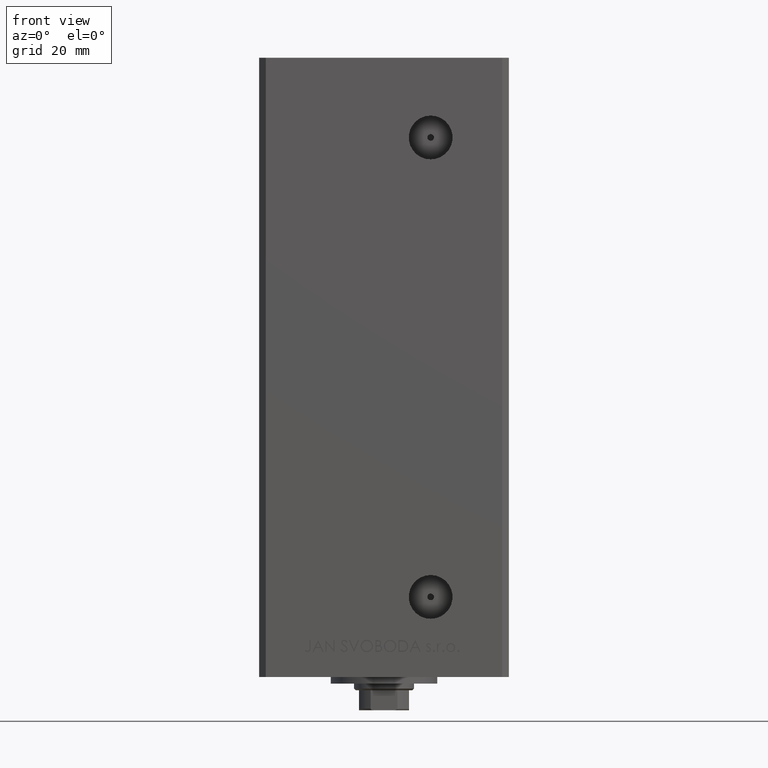
[diagram: clean part render]
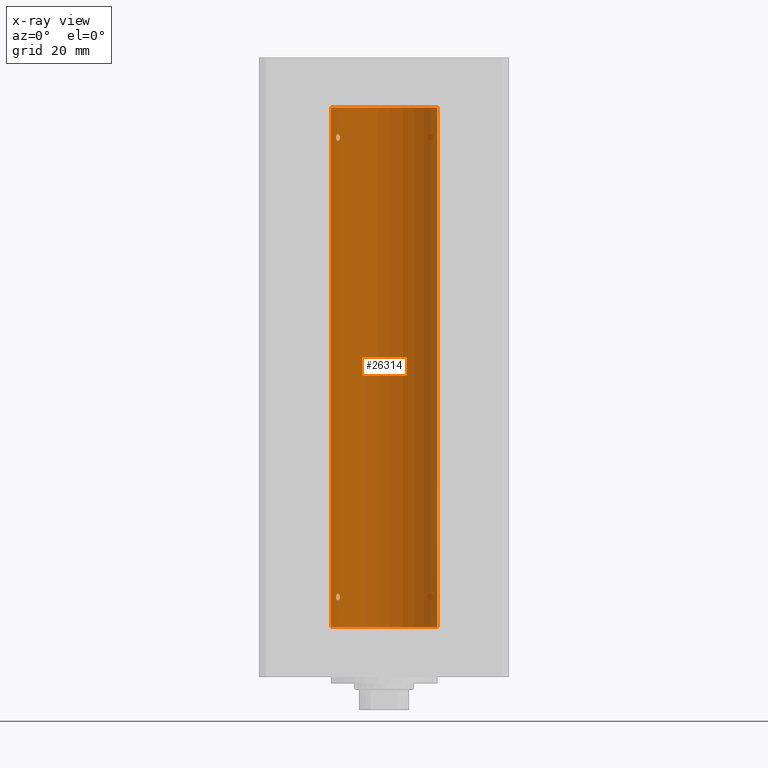
[diagram: x-ray — body ghosted, one internal face saturated and labeled with its STEP entity id]
A machine part, front view, then the same camera in x-ray: the body is ghosted and one INTERNAL B-rep face — a face not visible from any outside direction — is saturated and labeled: STEP entity #26314.
In plain terms, the highlighted cylindrical surface (partial cylindrical patch) has radius 16 mm, axis along (-0, -0, -1).
Its self-contained STEP definition (entity closure, byte-faithful):
#20 = CARTESIAN_POINT ( 'NONE',  ( -13.23400746336173484, 8.992294519018072307, 8.857814559023026391 ) ) ;
#146 = LINE ( 'NONE', #12428, #32082 ) ;
#596 = CARTESIAN_POINT ( 'NONE',  ( -13.91892506969882426, 7.891973478508846895, 148.0015521226324324 ) ) ;
#1583 = CARTESIAN_POINT ( 'NONE',  ( -14.38749456993816800, 6.999999999999984013, 9.000000000000007105 ) ) ;
#2012 = FACE_BOUND ( 'NONE', #5153, .T. ) ;
#2060 = CARTESIAN_POINT ( 'NONE',  ( -13.49759407097375075, 8.592283911330225621, 146.1840991521276862 ) ) ;
#2339 = EDGE_CURVE ( 'NONE', #33959, #44955, #7535, .T. ) ;
#3729 = ORIENTED_EDGE ( 'NONE', *, *, #42667, .F. ) ;
#4039 = CARTESIAN_POINT ( 'NONE',  ( -14.17528142432534288, 7.421143801852442934, 8.173943073538671555 ) ) ;
#4043 = ORIENTED_EDGE ( 'NONE', *, *, #14761, .F. ) ;
#4368 = CARTESIAN_POINT ( 'NONE',  ( -13.32457971225032267, 8.857769707964649797, 147.5319996627465571 ) ) ;
#4717 = ORIENTED_EDGE ( 'NONE', *, *, #28015, .T. ) ;
#5153 = EDGE_LOOP ( 'NONE', ( #29579, #26848 ) ) ;
#5825 = CARTESIAN_POINT ( 'NONE',  ( -13.91838063522421187, 7.892966471903947401, 145.9981483133087181 ) ) ;
#5844 = CARTESIAN_POINT ( 'NONE',  ( -14.31650799088419213, 7.144337649771898668, 9.535522627373698157 ) ) ;
#6134 = CIRCLE ( 'NONE', #43870, 16.00000000000000000 ) ;
#6352 = CARTESIAN_POINT ( 'NONE',  ( -16.00000000000000000, 0.000000000000000000, 156.0000000000000000 ) ) ;
#7058 = VERTEX_POINT ( 'NONE', #19110 ) ;
#7299 = CARTESIAN_POINT ( 'NONE',  ( -13.77582987033441952, 8.139210687602698613, 8.002110545841825129 ) ) ;
#7535 = B_SPLINE_CURVE_WITH_KNOTS ( 'NONE', 3,
 ( #46235, #42216, #34189, #34436, #38458, #4039, #23643, #42463, #49506, #7299, #15826, #19866, #31179, #30924, #35193, #26659, #11805, #20, #38961, #7543 ),
 .UNSPECIFIED., .F., .F.,
 ( 4, 2, 2, 2, 2, 2, 2, 2, 2, 4 ),
 ( 0.000000000000000000, 0.0004222090241339719434, 0.0008444180482679438868, 0.001266627072401915830, 0.001688836096535887774, 0.002111045120669859717, 0.002533254144803831660, 0.002955463168937803604, 0.003166567681004789359, 0.003377672193071775547 ),
 .UNSPECIFIED. ) ;
#7543 = CARTESIAN_POINT ( 'NONE',  ( -13.22875655532296335, 8.999999999999982236, 9.000000000000007105 ) ) ;
#8120 = CARTESIAN_POINT ( 'NONE',  ( -13.22875655532295802, 8.999999999999996447, 147.0000000000000000 ) ) ;
#8309 = ORIENTED_EDGE ( 'NONE', *, *, #12600, .F. ) ;
#8403 = DIRECTION ( 'NONE',  ( 1.000000000000000000, 0.000000000000000000, 0.000000000000000000 ) ) ;
#9579 = CARTESIAN_POINT ( 'NONE',  ( -14.31660136508398828, 7.144151923086062617, 146.4646217954444296 ) ) ;
#9599 = CARTESIAN_POINT ( 'NONE',  ( -14.27521483392929902, 7.227035590538620546, 9.647859870688199280 ) ) ;
#9832 = CARTESIAN_POINT ( 'NONE',  ( -13.25390108270225298, 8.962947079338393408, 146.7214357623584817 ) ) ;
#9898 = VERTEX_POINT ( 'NONE', #10480 ) ;
#10320 = CARTESIAN_POINT ( 'NONE',  ( -14.27547848986623080, 7.226527013162187707, 146.3525557301815354 ) ) ;
#10480 = CARTESIAN_POINT ( 'NONE',  ( -16.00000000000000000, 0.000000000000000000, 0.000000000000000000 ) ) ;
#11422 = CARTESIAN_POINT ( 'NONE',  ( 0.000000000000000000, 0.000000000000000000, 156.0000000000000000 ) ) ;
#11805 = CARTESIAN_POINT ( 'NONE',  ( -13.25390108270226364, 8.962947079338375644, 8.721435762358465738 ) ) ;
#12305 = EDGE_CURVE ( 'NONE', #44955, #33959, #44601, .T. ) ;
#12428 = CARTESIAN_POINT ( 'NONE',  ( 16.00000000000000000, 1.959434878635765131E-15, 156.0000000000000000 ) ) ;
#12600 = EDGE_CURVE ( 'NONE', #49681, #7058, #34445, .T. ) ;
#13182 = CARTESIAN_POINT ( 'NONE',  ( -13.22875655532296335, 8.999999999999982236, 9.000000000000007105 ) ) ;
#13344 = CARTESIAN_POINT ( 'NONE',  ( -14.37250282441143945, 7.031013007322937547, 146.7168569960372793 ) ) ;
#13611 = CARTESIAN_POINT ( 'NONE',  ( -14.38749456993816978, 6.999999999999985789, 9.142625441524216967 ) ) ;
#13688 = VERTEX_POINT ( 'NONE', #40448 ) ;
#14331 = CARTESIAN_POINT ( 'NONE',  ( -14.17528142432533755, 7.421143801852456257, 146.1739430735386804 ) ) ;
#14761 = EDGE_CURVE ( 'NONE', #7058, #49681, #31355, .T. ) ;
#15025 = DIRECTION ( 'NONE',  ( -0.000000000000000000, -0.000000000000000000, -1.000000000000000000 ) ) ;
#15445 = CIRCLE ( 'NONE', #43550, 16.00000000000000000 ) ;
#15456 = DIRECTION ( 'NONE',  ( -0.000000000000000000, -0.000000000000000000, -1.000000000000000000 ) ) ;
#15826 = CARTESIAN_POINT ( 'NONE',  ( -13.70481462797718386, 8.258098555717490186, 8.025997477291141990 ) ) ;
#15902 = CARTESIAN_POINT ( 'NONE',  ( -13.98878315975728981, 7.767347947480344850, 147.9805461432612503 ) ) ;
#17151 = CARTESIAN_POINT ( 'NONE',  ( -13.24976519864029889, 8.969293778684560792, 9.281535226335167366 ) ) ;
#17376 = CARTESIAN_POINT ( 'NONE',  ( -13.32426099938365383, 8.858246960865843178, 146.4688748775329827 ) ) ;
#17898 = CARTESIAN_POINT ( 'NONE',  ( -14.17576283486775779, 7.420212263225971050, 9.825253034304363808 ) ) ;
#18119 = AXIS2_PLACEMENT_3D ( 'NONE', #45679, #15025, #26360 ) ;
#18125 = CARTESIAN_POINT ( 'NONE',  ( -13.22875655532295802, 8.999999999999996447, 147.0000000000000000 ) ) ;
#18477 = DIRECTION ( 'NONE',  ( -0.000000000000000000, 0.000000000000000000, 1.000000000000000000 ) ) ;
#18806 = EDGE_CURVE ( 'NONE', #19444, #9898, #15445, .T. ) ;
#19110 = CARTESIAN_POINT ( 'NONE',  ( -13.22875655532295802, 8.999999999999996447, 147.0000000000000000 ) ) ;
#19444 = VERTEX_POINT ( 'NONE', #43198 ) ;
#19447 = CARTESIAN_POINT ( 'NONE',  ( -13.22875655532296157, 8.999999999999998224, 147.1406447609177519 ) ) ;
#19700 = CARTESIAN_POINT ( 'NONE',  ( -13.55800260393082901, 8.498809056167511145, 147.9036434462101397 ) ) ;
#19866 = CARTESIAN_POINT ( 'NONE',  ( -13.56386909142670660, 8.487613976483618927, 8.118224297996086136 ) ) ;
#20915 = CARTESIAN_POINT ( 'NONE',  ( -13.98699950016872506, 7.770591669637118670, 146.0184768166485298 ) ) ;
#20932 = CARTESIAN_POINT ( 'NONE',  ( -14.11618354197462644, 7.533333301880464461, 9.893207651933423108 ) ) ;
#21161 = CARTESIAN_POINT ( 'NONE',  ( -13.70481462797717320, 8.258098555717507949, 146.0259974772911278 ) ) ;
#21672 = CARTESIAN_POINT ( 'NONE',  ( -14.37227256866306746, 7.031482256185695334, 9.284457240976488279 ) ) ;
#21942 = DIRECTION ( 'NONE',  ( -0.000000000000000000, -0.000000000000000000, -1.000000000000000000 ) ) ;
#22745 = CARTESIAN_POINT ( 'NONE',  ( 0.000000000000000000, 0.000000000000000000, 0.000000000000000000 ) ) ;
#22968 = CARTESIAN_POINT ( 'NONE',  ( -14.37227256866306213, 7.031482256185710433, 147.2844572409764794 ) ) ;
#23643 = CARTESIAN_POINT ( 'NONE',  ( -14.11621438951178575, 7.533308783216997817, 8.106571071839523412 ) ) ;
#24691 = VERTEX_POINT ( 'NONE', #40625 ) ;
#24955 = CARTESIAN_POINT ( 'NONE',  ( -13.98878315975730224, 7.767347947480332415, 9.980546143261287639 ) ) ;
#25674 = CARTESIAN_POINT ( 'NONE',  ( -13.77582987033441064, 8.139210687602716376, 146.0021105458418447 ) ) ;
#26314 = ADVANCED_FACE ( 'NONE', ( #36434, #2012, #32675 ), #30631, .F. ) ;
#26360 = DIRECTION ( 'NONE',  ( -1.000000000000000000, 0.000000000000000000, 0.000000000000000000 ) ) ;
#26659 = CARTESIAN_POINT ( 'NONE',  ( -13.26838749541401263, 8.941532915076029653, 8.656217793921380022 ) ) ;
#26745 = CARTESIAN_POINT ( 'NONE',  ( -14.17576283486774713, 7.420212263225987925, 147.8252530343043247 ) ) ;
#26848 = ORIENTED_EDGE ( 'NONE', *, *, #12305, .F. ) ;
#27280 = EDGE_LOOP ( 'NONE', ( #8309, #4043 ) ) ;
#27490 = CARTESIAN_POINT ( 'NONE',  ( -14.38749456993816089, 6.999999999999999112, 147.1426254415242454 ) ) ;
#27742 = CARTESIAN_POINT ( 'NONE',  ( -14.27521483392929369, 7.227035590538639198, 147.6478598706881940 ) ) ;
#28015 = EDGE_CURVE ( 'NONE', #24691, #9898, #40772, .T. ) ;
#28722 = CARTESIAN_POINT ( 'NONE',  ( -13.91892506969883669, 7.891973478508838902, 10.00155212263245375 ) ) ;
#28959 = CARTESIAN_POINT ( 'NONE',  ( -14.38749456993815556, 6.999999999999997335, 146.8571474096353882 ) ) ;
#29448 = CARTESIAN_POINT ( 'NONE',  ( -13.26838749541400730, 8.941532915076043864, 146.6562177939213427 ) ) ;
#29579 = ORIENTED_EDGE ( 'NONE', *, *, #2339, .F. ) ;
#29692 = CARTESIAN_POINT ( 'NONE',  ( -13.23400746336172418, 8.992294519018086518, 146.8578145590230122 ) ) ;
#30631 = CYLINDRICAL_SURFACE ( 'NONE', #18119, 16.00000000000000000 ) ;
#30796 = DIRECTION ( 'NONE',  ( -0.000000000000000000, 0.000000000000000000, 1.000000000000000000 ) ) ;
#30924 = CARTESIAN_POINT ( 'NONE',  ( -13.37674940693423054, 8.779234808442856419, 8.360244157126787812 ) ) ;
#31157 = EDGE_CURVE ( 'NONE', #13688, #24691, #6134, .T. ) ;
#31179 = CARTESIAN_POINT ( 'NONE',  ( -13.49759407097375608, 8.592283911330213186, 8.184099152127679133 ) ) ;
#31355 = B_SPLINE_CURVE_WITH_KNOTS ( 'NONE', 3,
 ( #8120, #19447, #31516, #4368, #35529, #19700, #35024, #596, #15902, #35273, #26745, #27742, #42049, #22968, #27490, #42803 ),
 .UNSPECIFIED., .F., .F.,
 ( 4, 2, 2, 2, 2, 2, 2, 4 ),
 ( 0.003377672193071779884, 0.003799209865779893530, 0.004220747538488007176, 0.005063822883904185029, 0.005485360556612275257, 0.005906898229320365484, 0.006328435902028455712, 0.006749973574736545072 ),
 .UNSPECIFIED. ) ;
#31516 = CARTESIAN_POINT ( 'NONE',  ( -13.24976519864029179, 8.969293778684573226, 147.2815352263351656 ) ) ;
#32082 = VECTOR ( 'NONE', #15456, 1000.000000000000000 ) ;
#32251 = CARTESIAN_POINT ( 'NONE',  ( -13.70792461986391864, 8.256614593260295010, 9.996621535642280065 ) ) ;
#32491 = CARTESIAN_POINT ( 'NONE',  ( -13.32457971225033866, 8.857769707964637362, 9.531999662746560631 ) ) ;
#32675 = FACE_BOUND ( 'NONE', #27280, .T. ) ;
#32718 = CARTESIAN_POINT ( 'NONE',  ( -13.22875655532295802, 8.999999999999998224, 146.9295656223616504 ) ) ;
#33959 = VERTEX_POINT ( 'NONE', #38473 ) ;
#34189 = CARTESIAN_POINT ( 'NONE',  ( -14.37250282441144655, 7.031013007322923336, 8.716856996037272154 ) ) ;
#34436 = CARTESIAN_POINT ( 'NONE',  ( -14.31660136508400072, 7.144151923086045741, 8.464621795444484675 ) ) ;
#34445 = B_SPLINE_CURVE_WITH_KNOTS ( 'NONE', 3,
 ( #44014, #28959, #13344, #9579, #10320, #14331, #40249, #20915, #5825, #25674, #21161, #36235, #2060, #47780, #17376, #29448, #9832, #29692, #32718, #18125 ),
 .UNSPECIFIED., .F., .F.,
 ( 4, 2, 2, 2, 2, 2, 2, 2, 2, 4 ),
 ( 0.000000000000000000, 0.0004222090241339814844, 0.0008444180482679629687, 0.001266627072401944453, 0.001688836096535925937, 0.002111045120669907422, 0.002533254144803888906, 0.002955463168937870391, 0.003166567681004825354, 0.003377672193071779884 ),
 .UNSPECIFIED. ) ;
#35024 = CARTESIAN_POINT ( 'NONE',  ( -13.70792461986390798, 8.256614593260307444, 147.9966215356422765 ) ) ;
#35193 = CARTESIAN_POINT ( 'NONE',  ( -13.32426099938365915, 8.858246960865836073, 8.468874877532975631 ) ) ;
#35273 = CARTESIAN_POINT ( 'NONE',  ( -14.11618354197461400, 7.533333301880476895, 147.8932076519334089 ) ) ;
#35529 = CARTESIAN_POINT ( 'NONE',  ( -13.37741691572086289, 8.778212469423007036, 147.6408828602271228 ) ) ;
#36005 = CARTESIAN_POINT ( 'NONE',  ( -13.37741691572086467, 8.778212469422998154, 9.640882860227108608 ) ) ;
#36235 = CARTESIAN_POINT ( 'NONE',  ( -13.56386909142669772, 8.487613976483638467, 146.1182242979960790 ) ) ;
#36434 = FACE_OUTER_BOUND ( 'NONE', #39538, .T. ) ;
#37244 = ORIENTED_EDGE ( 'NONE', *, *, #31157, .T. ) ;
#37344 = VECTOR ( 'NONE', #21942, 1000.000000000000000 ) ;
#38312 = DIRECTION ( 'NONE',  ( 1.000000000000000000, 0.000000000000000000, 0.000000000000000000 ) ) ;
#38458 = CARTESIAN_POINT ( 'NONE',  ( -14.27547848986623258, 7.226527013162171720, 8.352555730181538962 ) ) ;
#38473 = CARTESIAN_POINT ( 'NONE',  ( -14.38749456993816800, 6.999999999999984013, 9.000000000000007105 ) ) ;
#38961 = CARTESIAN_POINT ( 'NONE',  ( -13.22875655532296513, 8.999999999999982236, 8.929565622361650412 ) ) ;
#39538 = EDGE_LOOP ( 'NONE', ( #3729, #37244, #4717, #40479 ) ) ;
#39773 = CARTESIAN_POINT ( 'NONE',  ( -13.22875655532296335, 8.999999999999978684, 9.140644760917750133 ) ) ;
#40249 = CARTESIAN_POINT ( 'NONE',  ( -14.11621438951178398, 7.533308783217012028, 146.1065710718395110 ) ) ;
#40267 = CARTESIAN_POINT ( 'NONE',  ( -13.55800260393082901, 8.498809056167502263, 9.903643446210180556 ) ) ;
#40448 = CARTESIAN_POINT ( 'NONE',  ( 16.00000000000000000, 1.959434878635765131E-15, 156.0000000000000000 ) ) ;
#40479 = ORIENTED_EDGE ( 'NONE', *, *, #18806, .F. ) ;
#40625 = CARTESIAN_POINT ( 'NONE',  ( -16.00000000000000000, 0.000000000000000000, 156.0000000000000000 ) ) ;
#40772 = LINE ( 'NONE', #6352, #37344 ) ;
#42049 = CARTESIAN_POINT ( 'NONE',  ( -14.31650799088418324, 7.144337649771909327, 147.5355226273736662 ) ) ;
#42216 = CARTESIAN_POINT ( 'NONE',  ( -14.38749456993816445, 6.999999999999982236, 8.857147409635420132 ) ) ;
#42463 = CARTESIAN_POINT ( 'NONE',  ( -13.98699950016873039, 7.770591669637105348, 8.018476816648488992 ) ) ;
#42667 = EDGE_CURVE ( 'NONE', #13688, #19444, #146, .T. ) ;
#42803 = CARTESIAN_POINT ( 'NONE',  ( -14.38749456993815912, 6.999999999999998224, 147.0000000000000000 ) ) ;
#43198 = CARTESIAN_POINT ( 'NONE',  ( 16.00000000000000000, 1.959434878635765131E-15, 0.000000000000000000 ) ) ;
#43550 = AXIS2_PLACEMENT_3D ( 'NONE', #22745, #18477, #38312 ) ;
#43870 = AXIS2_PLACEMENT_3D ( 'NONE', #11422, #30796, #8403 ) ;
#44014 = CARTESIAN_POINT ( 'NONE',  ( -14.38749456993815912, 6.999999999999998224, 147.0000000000000000 ) ) ;
#44283 = CARTESIAN_POINT ( 'NONE',  ( -13.22875655532296335, 8.999999999999982236, 9.000000000000007105 ) ) ;
#44601 = B_SPLINE_CURVE_WITH_KNOTS ( 'NONE', 3,
 ( #44283, #39773, #17151, #32491, #36005, #40267, #32251, #28722, #24955, #20932, #17898, #9599, #5844, #21672, #13611, #1583 ),
 .UNSPECIFIED., .F., .F.,
 ( 4, 2, 2, 2, 2, 2, 2, 4 ),
 ( 0.003377672193071775547, 0.003799209865779873581, 0.004220747538487971615, 0.005063822883904167682, 0.005485360556612266583, 0.005906898229320366352, 0.006328435902028466120, 0.006749973574736565021 ),
 .UNSPECIFIED. ) ;
#44955 = VERTEX_POINT ( 'NONE', #13182 ) ;
#45339 = CARTESIAN_POINT ( 'NONE',  ( -14.38749456993815912, 6.999999999999998224, 147.0000000000000000 ) ) ;
#45679 = CARTESIAN_POINT ( 'NONE',  ( 0.000000000000000000, 0.000000000000000000, 156.0000000000000000 ) ) ;
#46235 = CARTESIAN_POINT ( 'NONE',  ( -14.38749456993816800, 6.999999999999984013, 9.000000000000007105 ) ) ;
#47780 = CARTESIAN_POINT ( 'NONE',  ( -13.37674940693422698, 8.779234808442867077, 146.3602441571268287 ) ) ;
#49506 = CARTESIAN_POINT ( 'NONE',  ( -13.91838063522421542, 7.892966471903923420, 7.998148313308686141 ) ) ;
#49681 = VERTEX_POINT ( 'NONE', #45339 ) ;